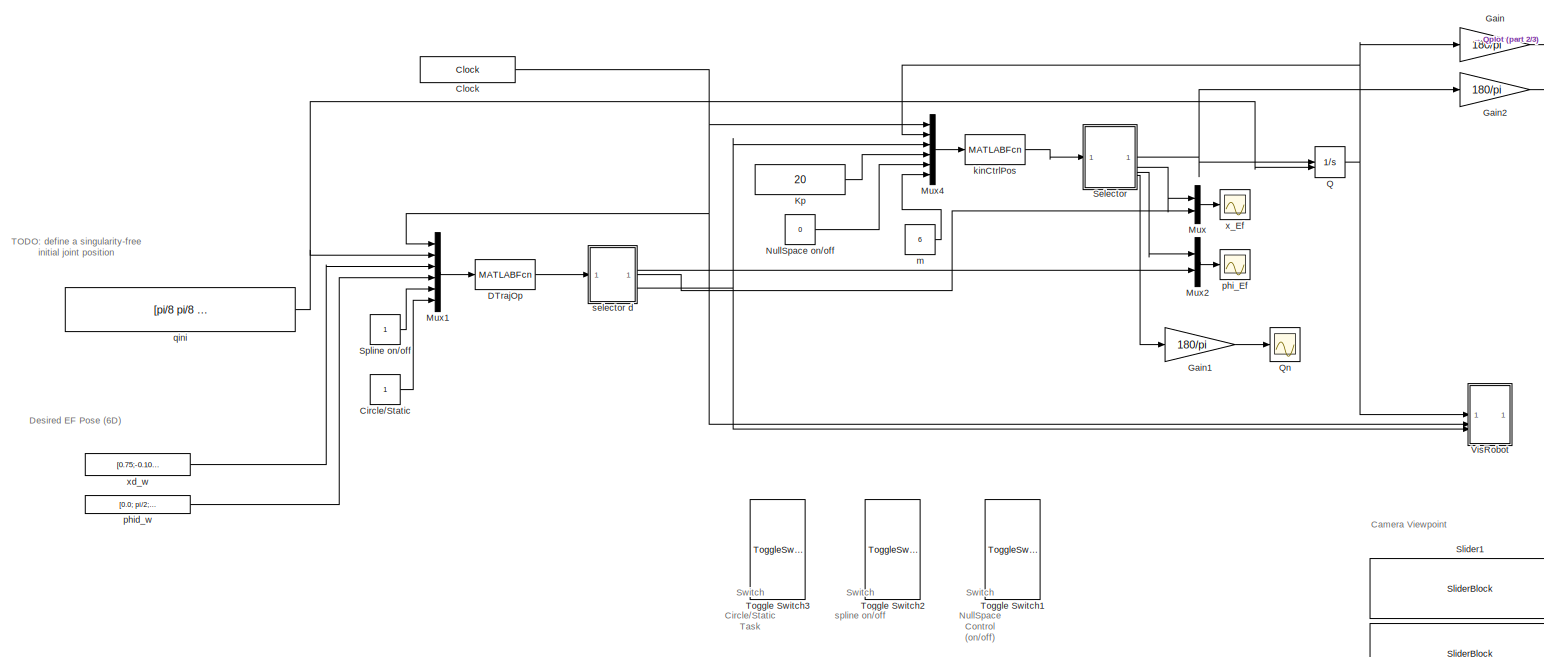
[diagram: root canvas - part 1/3, most of the canvas]
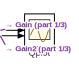
[diagram: root canvas - part 2/3, top right region]
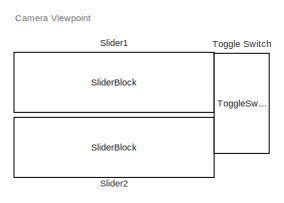
[diagram: root canvas - part 3/3, bottom right region]
MODEL slx_1be561bfc572
KIND model
CONFIG AbsTol = auto
CONFIG EnableMultiTasking = on
CONFIG FixedStep = 0.001
CONFIG MaxStep = auto
CONFIG MinStep = auto
CONFIG RelTol = 1e-3
CONFIG SampleTimeConstraint = Unconstrained
CONFIG SolverName = ode1
CONFIG StartTime = 0.0
CONFIG StopTime = 40
BLOCK [Constant] Circle//Static
BLOCK [Clock] Clock
  DisplayTime = on
BLOCK [MATLABFcn] DTrajOp
  MATLABFcn = desired_op_trajectory(u)
  OutputDimensions = 22
BLOCK [Gain] Gain
  Gain = 180/pi
BLOCK [Gain] Gain1
  Gain = 180/pi
BLOCK [Gain] Gain2
  Gain = 180/pi
BLOCK [Constant] Kp
  Value = 20
BLOCK [Mux] Mux
  DisplayOption = bar
  Inputs = 2
BLOCK [Mux] Mux1
  DisplayOption = bar
  Inputs = 6
BLOCK [Mux] Mux2
  DisplayOption = bar
  Inputs = 2
BLOCK [Mux] Mux4
  DisplayOption = bar
  Inputs = 6
BLOCK [Constant] NullSpace on//off
  Value = 0
BLOCK [Integrator] Q
  InitialConditionSource = external
BLOCK [Scope] Qn
  Floating = off
  NumInputPorts = 1
  ScopeSpecificationString = Simulink.scopes.TimeScopeBlockCfg('CurrentConfiguration', extmgr.ConfigurationSet(extmgr.Configuration('Core','General UI',true),extmgr.Configuration('Core','Source UI',true),extmgr.Configuration('Sources','WiredSimulink',true,'DataLoggingVariableName','ScopeData1'),extmgr.Configuration('Visuals','Time Domain',true,'SerializedDisplays',{struct('MinYLimReal','-264.83305','MaxYLimReal','108.29553','...<+1521ch>
BLOCK [Scope] Qplot
  Floating = off
  NumInputPorts = 2
  ScopeSpecificationString = Simulink.scopes.TimeScopeBlockCfg('CurrentConfiguration', extmgr.ConfigurationSet(extmgr.Configuration('Core','General UI',true,'FigureColor',[0 0 0]),extmgr.Configuration('Core','Source UI',true),extmgr.Configuration('Sources','WiredSimulink',true,'DataLoggingVariableName','ScopeData1'),extmgr.Configuration('Visuals','Time Domain',true,'SerializedDisplays',{struct('MinYLimReal','-70.07169','MaxYL...<+2084ch>
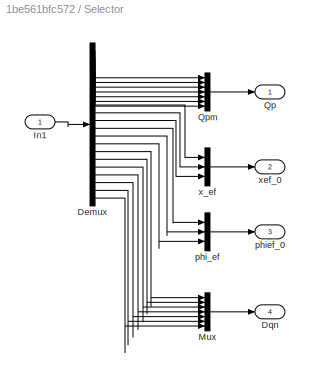
BLOCK [SubSystem] Selector
BLOCK [Demux] Selector/Demux
  Outputs = 20
BLOCK [Outport] Selector/Dqn
  Port = 4
BLOCK [Inport] Selector/In1
BLOCK [Mux] Selector/Mux
  DisplayOption = bar
  Inputs = 7
BLOCK [Outport] Selector/Qp
BLOCK [Mux] Selector/Qpm
  DisplayOption = bar
  Inputs = 7
BLOCK [Mux] Selector/phi_ef
  DisplayOption = bar
  Inputs = 3
BLOCK [Outport] Selector/phief_0
  Port = 3
BLOCK [Mux] Selector/x_ef
  DisplayOption = bar
  Inputs = 3
BLOCK [Outport] Selector/xef_0
  Port = 2
BLOCK [SliderBlock] Slider1
  ScaleMax = 180
  ScaleMin = -180
  TickInterval = 180
BLOCK [SliderBlock] Slider2
  ScaleMax = 180
  ScaleMin = -180
  TickInterval = 180
BLOCK [Constant] Spline on//off
BLOCK [ToggleSwitchBlock] Toggle Switch
BLOCK [ToggleSwitchBlock] Toggle Switch1
BLOCK [ToggleSwitchBlock] Toggle Switch2
BLOCK [ToggleSwitchBlock] Toggle Switch3
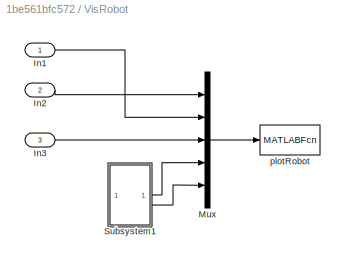
BLOCK [SubSystem] VisRobot
BLOCK [Inport] VisRobot/In1
BLOCK [Inport] VisRobot/In2
  Port = 2
BLOCK [Inport] VisRobot/In3
  Port = 3
BLOCK [Mux] VisRobot/Mux
  DisplayOption = bar
  Inputs = 5
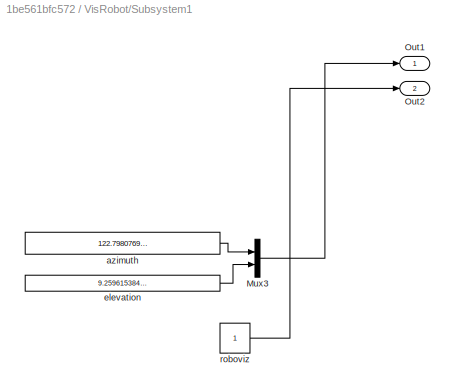
BLOCK [SubSystem] VisRobot/Subsystem1
BLOCK [Mux] VisRobot/Subsystem1/Mux3
  DisplayOption = bar
  Inputs = 2
BLOCK [Outport] VisRobot/Subsystem1/Out1
BLOCK [Outport] VisRobot/Subsystem1/Out2
  Port = 2
BLOCK [Constant] VisRobot/Subsystem1/azimuth
  Value = 122.7980769230769
BLOCK [Constant] VisRobot/Subsystem1/elevation
  Value = 9.259615384615358
BLOCK [Constant] VisRobot/Subsystem1/roboviz
BLOCK [MATLABFcn] VisRobot/plotRobot
  MATLABFcn = plotRobot_KinCtrlNS(u)
  OutputDimensions = 0
BLOCK [MATLABFcn] kinCtrlPos
  MATLABFcn = kinematicCtrlOpNS(u)
  OutputDimensions = 20
BLOCK [Constant] m
  Value = 6
BLOCK [Scope] phi_Ef
  Floating = off
  NumInputPorts = 1
  ScopeSpecificationString = Simulink.scopes.TimeScopeBlockCfg('CurrentConfiguration', extmgr.ConfigurationSet(extmgr.Configuration('Core','General UI',true),extmgr.Configuration('Core','Source UI',true),extmgr.Configuration('Sources','WiredSimulink',true,'DataLoggingSaveFormat','StructureWithTime','DataLoggingDecimation','1','DataLoggingDecimateData',true,'DataLoggingVariableName','ScopeData3'),extmgr.Configuration('Visuals'...<+1804ch>
BLOCK [Constant] phid_w
  Value = [0.0; pi/2; 0.2]
  VectorParams1D = off
BLOCK [Constant] qini
  Value = [pi/8 pi/8 pi/8 pi/8 pi/8 pi/8 pi/8]
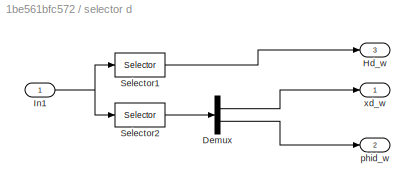
BLOCK [SubSystem] selector d
BLOCK [Demux] selector d/Demux
  Outputs = 2
BLOCK [Outport] selector d/Hd_w
  Port = 3
BLOCK [Inport] selector d/In1
BLOCK [Selector] selector d/Selector1
  IndexOptions = Index vector (dialog)
  Indices = [1:16]
  InputPortWidth = 22
  OutputSizes = 1
BLOCK [Selector] selector d/Selector2
  IndexOptions = Index vector (dialog)
  Indices = [17:22]
  InputPortWidth = 22
  OutputSizes = 1
BLOCK [Outport] selector d/phid_w
  Port = 2
BLOCK [Outport] selector d/xd_w
BLOCK [Scope] x_Ef
  Floating = off
  NumInputPorts = 1
  ScopeSpecificationString = Simulink.scopes.TimeScopeBlockCfg('CurrentConfiguration', extmgr.ConfigurationSet(extmgr.Configuration('Core','General UI',true,'FigureColor',[0 0 0]),extmgr.Configuration('Core','Source UI',true),extmgr.Configuration('Sources','WiredSimulink',true,'DataLoggingSaveFormat','StructureWithTime','DataLoggingDecimation','1','DataLoggingDecimateData',true,'DataLoggingVariableName','ScopeData1'),extmgr.C...<+1795ch>
BLOCK [Constant] xd_w
  Value = [0.75;-0.10;0.5]%[1;0.2;0.7]
ANNOTATION (root): Switch Circle/Static Task
ANNOTATION (root): Switch NullSpace Control (on/off)
ANNOTATION (root): Switch spline on/off
ANNOTATION (root): TODO: define a singularity-free initial joint position
ANNOTATION (root): Camera Viewpoint
ANNOTATION (root): Desired EF Pose (6D)
LINE Circle//Static:1 -> Mux1:6
NET Clock:1 -> Mux1:1, Mux4:1, VisRobot:2
LINE DTrajOp:1 -> selector d:1
LINE Gain1:1 -> Qn:1
LINE Gain2:1 -> Qplot:2
LINE Gain:1 -> Qplot:1
LINE Kp:1 -> Mux4:4
LINE Mux1:1 -> DTrajOp:1
LINE Mux2:1 -> phi_Ef:1
LINE Mux4:1 -> kinCtrlPos:1
LINE Mux:1 -> x_Ef:1
LINE NullSpace on//off:1 -> Mux4:5
NET Q:1 -> Gain:1, Mux4:2, VisRobot:1
LINE Selector/Demux:1 -> Selector/Qpm:1
LINE Selector/Demux:10 -> Selector/x_ef:3
LINE Selector/Demux:11 -> Selector/phi_ef:1
LINE Selector/Demux:12 -> Selector/phi_ef:2
LINE Selector/Demux:13 -> Selector/phi_ef:3
LINE Selector/Demux:14 -> Selector/Mux:1
LINE Selector/Demux:15 -> Selector/Mux:2
LINE Selector/Demux:16 -> Selector/Mux:3
LINE Selector/Demux:17 -> Selector/Mux:4
LINE Selector/Demux:18 -> Selector/Mux:5
LINE Selector/Demux:19 -> Selector/Mux:6
LINE Selector/Demux:2 -> Selector/Qpm:2
LINE Selector/Demux:20 -> Selector/Mux:7
LINE Selector/Demux:3 -> Selector/Qpm:3
LINE Selector/Demux:4 -> Selector/Qpm:4
LINE Selector/Demux:5 -> Selector/Qpm:5
LINE Selector/Demux:6 -> Selector/Qpm:6
LINE Selector/Demux:7 -> Selector/Qpm:7
LINE Selector/Demux:8 -> Selector/x_ef:1
LINE Selector/Demux:9 -> Selector/x_ef:2
LINE Selector/In1:1 -> Selector/Demux:1
LINE Selector/Mux:1 -> Selector/Dqn:1
LINE Selector/Qpm:1 -> Selector/Qp:1
LINE Selector/phi_ef:1 -> Selector/phief_0:1
LINE Selector/x_ef:1 -> Selector/xef_0:1
NET Selector:1 -> Gain2:1, Q:1
LINE Selector:2 -> Mux:1
LINE Selector:3 -> Mux2:1
LINE Selector:4 -> Gain1:1
LINE Spline on//off:1 -> Mux1:5
LINE VisRobot/In1:1 -> VisRobot/Mux:2
LINE VisRobot/In2:1 -> VisRobot/Mux:1
LINE VisRobot/In3:1 -> VisRobot/Mux:3
LINE VisRobot/Mux:1 -> VisRobot/plotRobot:1
LINE VisRobot/Subsystem1/Mux3:1 -> VisRobot/Subsystem1/Out1:1
LINE VisRobot/Subsystem1/azimuth:1 -> VisRobot/Subsystem1/Mux3:1
LINE VisRobot/Subsystem1/elevation:1 -> VisRobot/Subsystem1/Mux3:2
LINE VisRobot/Subsystem1/roboviz:1 -> VisRobot/Subsystem1/Out2:1
LINE VisRobot/Subsystem1:1 -> VisRobot/Mux:4
LINE VisRobot/Subsystem1:2 -> VisRobot/Mux:5
LINE kinCtrlPos:1 -> Selector:1
LINE m:1 -> Mux4:6
LINE phid_w:1 -> Mux1:4
NET qini:1 -> Mux1:2, Q:2
LINE selector d/Demux:1 -> selector d/xd_w:1
LINE selector d/Demux:2 -> selector d/phid_w:1
NET selector d/In1:1 -> selector d/Selector1:1, selector d/Selector2:1
LINE selector d/Selector1:1 -> selector d/Hd_w:1
LINE selector d/Selector2:1 -> selector d/Demux:1
LINE selector d:1 -> Mux:2
LINE selector d:2 -> Mux2:2
NET selector d:3 -> Mux4:3, VisRobot:3
LINE xd_w:1 -> Mux1:3
note: NET lines group one-source signal fan-out (src -> all destinations, sorted); 1:1 wires keep LINE
